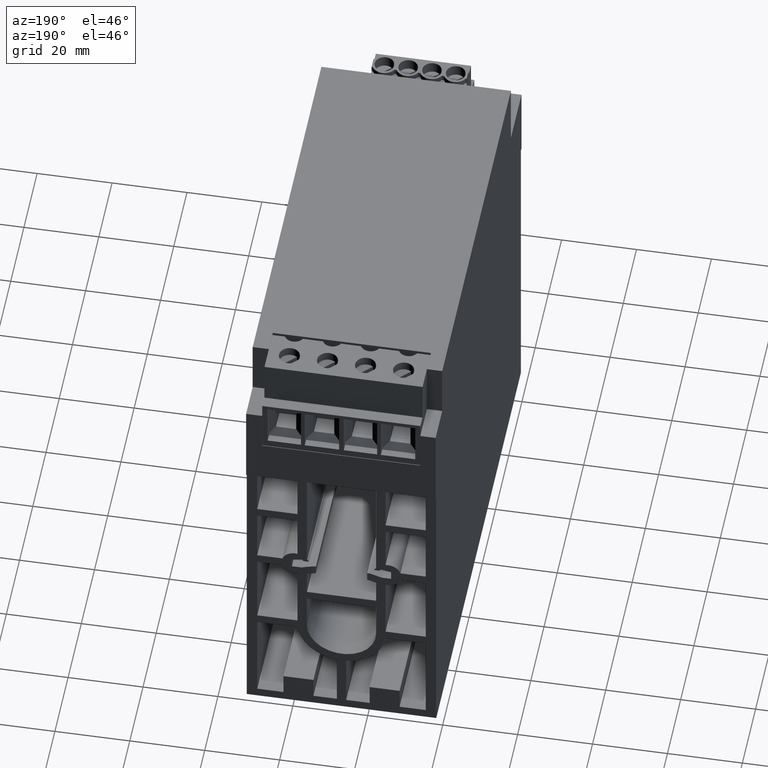
[diagram: clean part render]
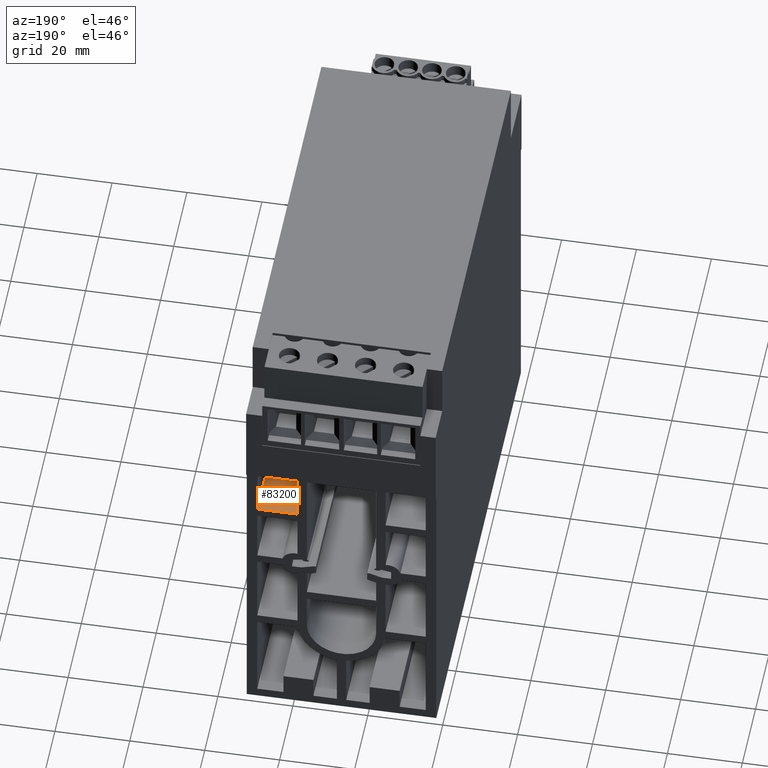
[diagram: same view with one face highlighted and labeled with its STEP entity id]
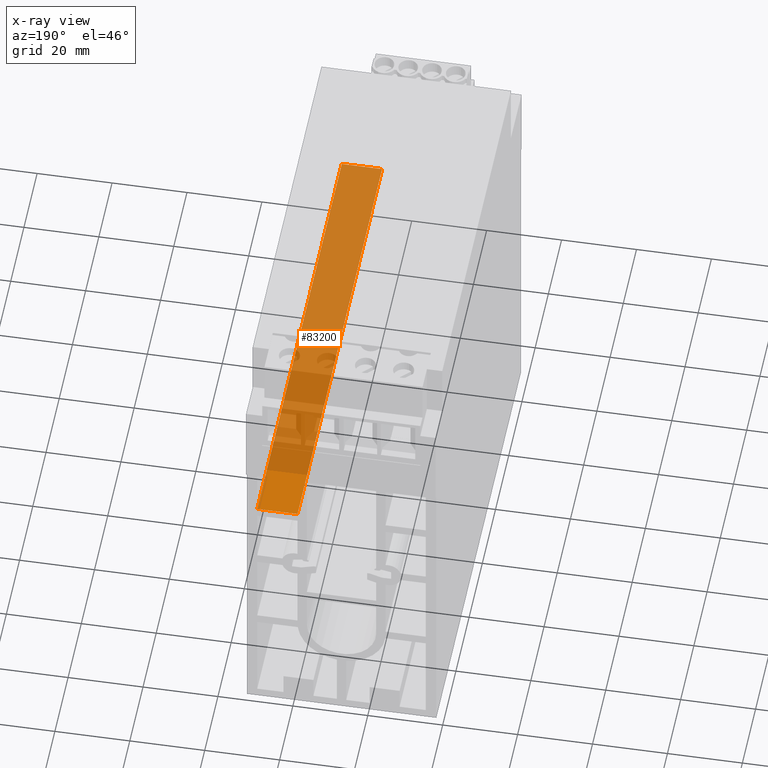
[diagram: x-ray of the same camera — body ghosted, the highlighted face saturated]
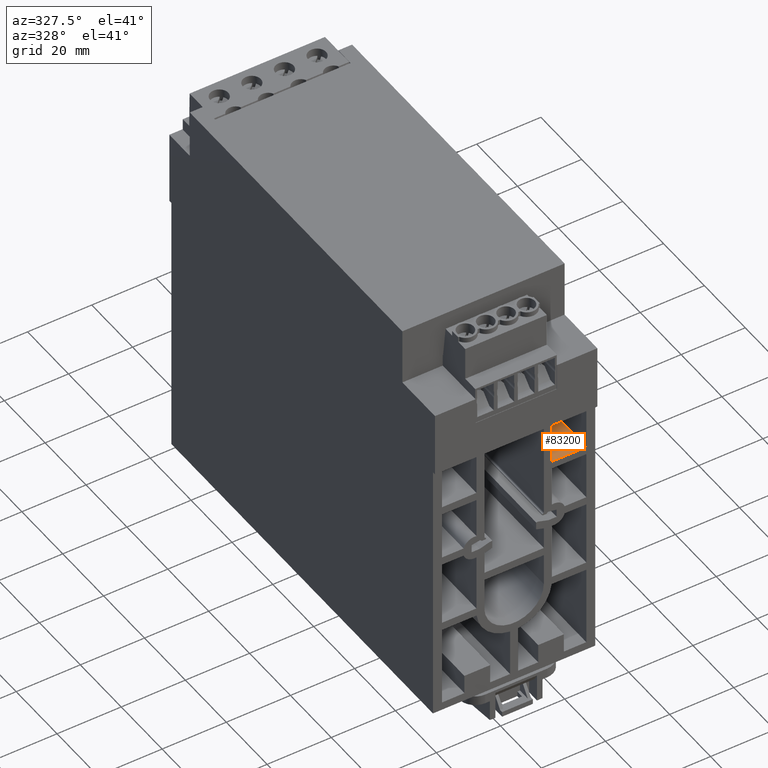
[diagram: same view with one face highlighted and labeled with its STEP entity id]
A machine part, auxiliary view. The second image highlights one B-rep face of the part: STEP entity #83200.
The next image is the same camera in x-ray: the body ghosted, the highlighted face saturated — about 89% of this face is hidden behind the body in this view.
A second angle (auxiliary view) of the same face is appended — the face is thin or edge-on in the first view.
In plain terms, the highlighted planar face has unit normal (0, 0, 1).
Its self-contained STEP definition (entity closure, byte-faithful):
#10340=CARTESIAN_POINT('',(12.05,92.5,21.35));
#10350=VERTEX_POINT('',#10340);
#10380=CARTESIAN_POINT('',(0.299999999999997,92.5,21.35));
#10390=DIRECTION('',(-1.,0.,0.));
#10400=VECTOR('',#10390,1.);
#10410=LINE('',#10380,#10400);
#10420=CARTESIAN_POINT('',(22.8,92.5,21.35));
#10430=VERTEX_POINT('',#10420);
#10440=EDGE_CURVE('',#10430,#10350,#10410,.T.);
#14610=CARTESIAN_POINT('',(22.8,92.5,-106.65));
#14620=VERTEX_POINT('',#14610);
#14650=CARTESIAN_POINT('',(0.299999999999997,92.5,-106.65));
#14660=DIRECTION('',(1.,0.,0.));
#14670=VECTOR('',#14660,1.);
#14680=LINE('',#14650,#14670);
#14690=CARTESIAN_POINT('',(12.05,92.5,-106.65));
#14700=VERTEX_POINT('',#14690);
#14710=EDGE_CURVE('',#14700,#14620,#14680,.T.);
#82850=CARTESIAN_POINT('',(22.8,92.5,-0.650000000000006));
#82860=DIRECTION('',(0.,0.,-1.));
#82870=VECTOR('',#82860,1.);
#82880=LINE('',#82850,#82870);
#82890=EDGE_CURVE('',#10430,#14620,#82880,.T.);
#83040=CARTESIAN_POINT('',(11.779927,92.5,21.426323));
#83050=DIRECTION('',(-0.,1.,0.));
#83060=DIRECTION('',(1.,0.,0.));
#83070=AXIS2_PLACEMENT_3D('',#83040,#83050,#83060);
#83080=PLANE('',#83070);
#83090=CARTESIAN_POINT('',(12.05,92.5,-0.650000000000006));
#83100=DIRECTION('',(0.,0.,-1.));
#83110=VECTOR('',#83100,1.);
#83120=LINE('',#83090,#83110);
#83130=EDGE_CURVE('',#10350,#14700,#83120,.T.);
#83140=ORIENTED_EDGE('',*,*,#83130,.F.);
#83150=ORIENTED_EDGE('',*,*,#14710,.F.);
#83160=ORIENTED_EDGE('',*,*,#82890,.T.);
#83170=ORIENTED_EDGE('',*,*,#10440,.F.);
#83180=EDGE_LOOP('',(#83170,#83160,#83150,#83140));
#83190=FACE_OUTER_BOUND('',#83180,.T.);
#83200=ADVANCED_FACE('',(#83190),#83080,.T.);